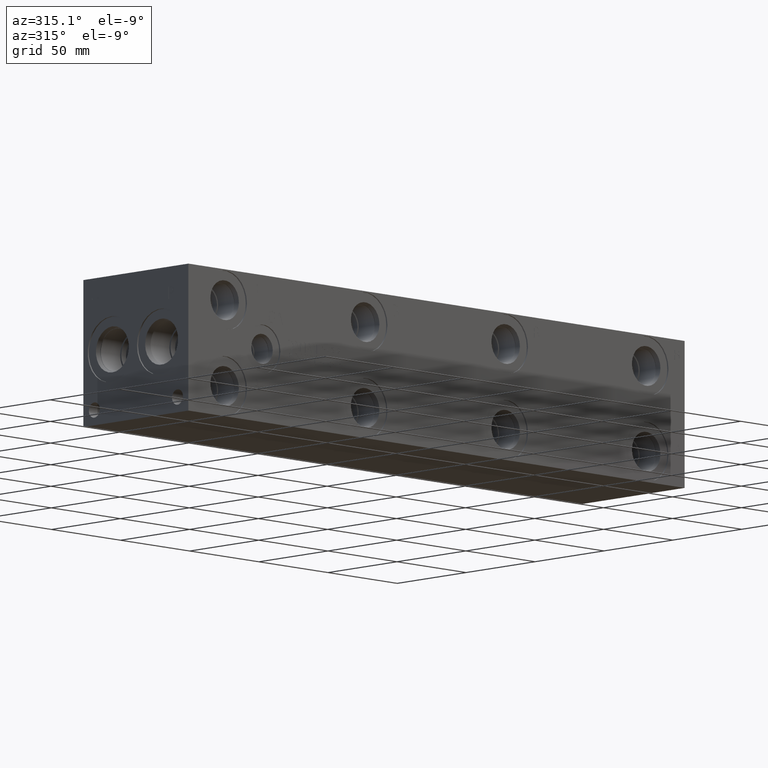
[diagram: clean part render]
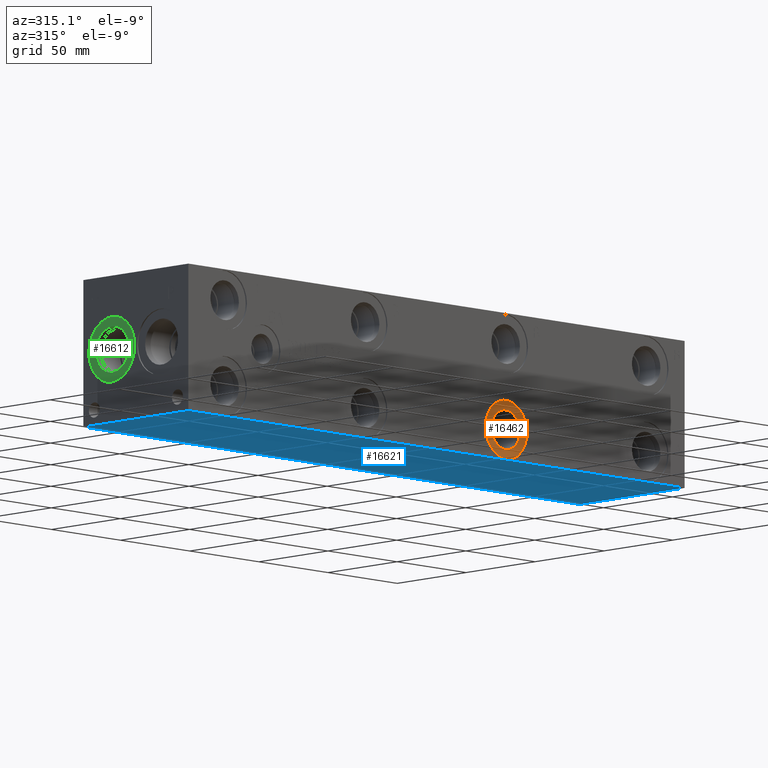
[diagram: same view with three faces highlighted in distinct colors, each labeled with its STEP entity id]
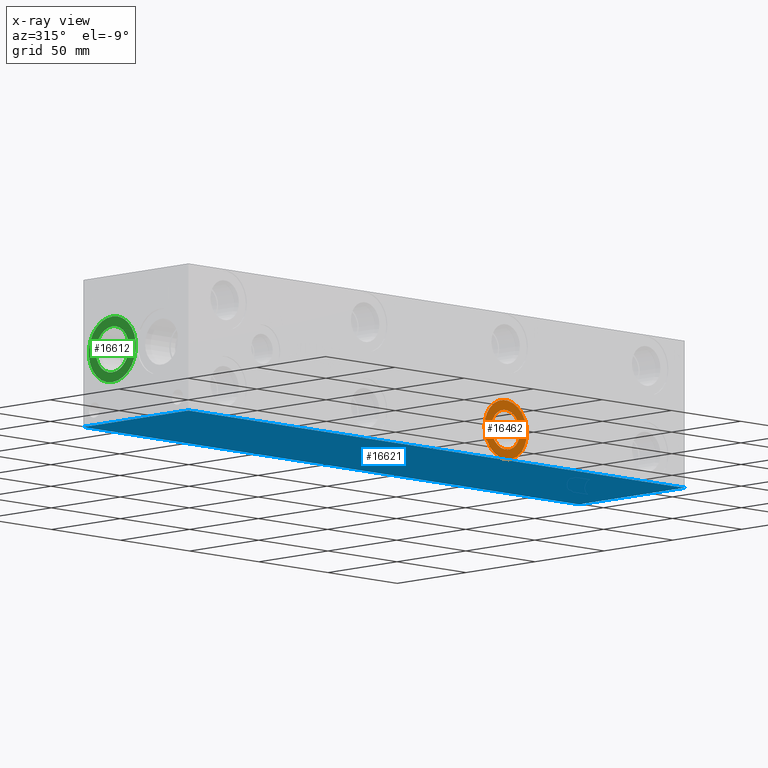
[diagram: x-ray of the same camera — body ghosted, the three highlighted faces saturated]
A machine part, auxiliary view with three faces highlighted in distinct colors.
The next image is the same camera in x-ray (body ghosted, the three faces saturated) — at least one of them is partly hidden behind the body in this view.
Their STEP definitions:

[orange] entity #16462 — the highlighted planar face has unit normal (0, 1, 0).
#514=CIRCLE('',#17426,15.3162);
#515=CIRCLE('',#17427,15.3162);
#516=CIRCLE('',#17429,10.2997);
#517=CIRCLE('',#17430,10.2997);
#837=FACE_BOUND('',#3128,.T.);
#2164=FACE_OUTER_BOUND('',#3127,.T.);
#3127=EDGE_LOOP('',(#13911,#13912));
#3128=EDGE_LOOP('',(#13913,#13914));
#7589=VERTEX_POINT('',#28028);
#7590=VERTEX_POINT('',#28030);
#7591=VERTEX_POINT('',#28034);
#7592=VERTEX_POINT('',#28035);
#9783=EDGE_CURVE('',#7589,#7590,#514,.T.);
#9784=EDGE_CURVE('',#7590,#7589,#515,.T.);
#9785=EDGE_CURVE('',#7591,#7592,#516,.T.);
#9786=EDGE_CURVE('',#7592,#7591,#517,.T.);
#13911=ORIENTED_EDGE('',*,*,#9784,.F.);
#13912=ORIENTED_EDGE('',*,*,#9783,.F.);
#13913=ORIENTED_EDGE('',*,*,#9785,.T.);
#13914=ORIENTED_EDGE('',*,*,#9786,.T.);
#15164=PLANE('',#17428);
#16462=ADVANCED_FACE('',(#2164,#837),#15164,.F.);
#17426=AXIS2_PLACEMENT_3D('',#28031,#20707,#20708);
#17427=AXIS2_PLACEMENT_3D('',#28032,#20709,#20710);
#17428=AXIS2_PLACEMENT_3D('',#28033,#20711,#20712);
#17429=AXIS2_PLACEMENT_3D('',#28036,#20713,#20714);
#17430=AXIS2_PLACEMENT_3D('',#28037,#20715,#20716);
#20707=DIRECTION('center_axis',(0.,1.,0.));
#20708=DIRECTION('ref_axis',(1.,0.,0.));
#20709=DIRECTION('center_axis',(0.,1.,0.));
#20710=DIRECTION('ref_axis',(1.,0.,0.));
#20711=DIRECTION('center_axis',(0.,1.,0.));
#20712=DIRECTION('ref_axis',(0.,0.,1.));
#20713=DIRECTION('center_axis',(0.,1.,0.));
#20714=DIRECTION('ref_axis',(1.,0.,0.));
#20715=DIRECTION('center_axis',(0.,1.,0.));
#20716=DIRECTION('ref_axis',(1.,0.,0.));
#28028=CARTESIAN_POINT('',(214.8586,0.7874,15.875));
#28030=CARTESIAN_POINT('',(245.491,0.7874,15.875));
#28031=CARTESIAN_POINT('Origin',(230.1748,0.7874,15.875));
#28032=CARTESIAN_POINT('Origin',(230.1748,0.7874,15.875));
#28033=CARTESIAN_POINT('Origin',(240.4745,0.7874,15.875));
#28034=CARTESIAN_POINT('',(240.4745,0.7874,15.875));
#28035=CARTESIAN_POINT('',(219.8751,0.787399999999999,15.875));
#28036=CARTESIAN_POINT('Origin',(230.1748,0.7874,15.875));
#28037=CARTESIAN_POINT('Origin',(230.1748,0.7874,15.875));

[blue] entity #16621 — the highlighted planar face has unit normal (0, 0, 1).
#2323=FACE_OUTER_BOUND('',#3351,.T.);
#3351=EDGE_LOOP('',(#14744,#14745,#14746,#14747));
#3683=LINE('',#23833,#5123);
#4472=LINE('',#26950,#5912);
#4531=LINE('',#27222,#5971);
#4790=LINE('',#28782,#6230);
#5123=VECTOR('',#18330,10.);
#5912=VECTOR('',#19705,10.);
#5971=VECTOR('',#19818,10.);
#6230=VECTOR('',#21599,10.);
#6574=VERTEX_POINT('',#23831);
#6575=VERTEX_POINT('',#23832);
#7234=VERTEX_POINT('',#26949);
#7292=VERTEX_POINT('',#27221);
#8346=EDGE_CURVE('',#6574,#6575,#3683,.T.);
#9325=EDGE_CURVE('',#6575,#7234,#4472,.T.);
#9408=EDGE_CURVE('',#7292,#6574,#4531,.T.);
#10136=EDGE_CURVE('',#7234,#7292,#4790,.T.);
#14744=ORIENTED_EDGE('',*,*,#8346,.F.);
#14745=ORIENTED_EDGE('',*,*,#9408,.F.);
#14746=ORIENTED_EDGE('',*,*,#10136,.F.);
#14747=ORIENTED_EDGE('',*,*,#9325,.F.);
#15197=PLANE('',#17812);
#16621=ADVANCED_FACE('',(#2323),#15197,.F.);
#17812=AXIS2_PLACEMENT_3D('',#28787,#21607,#21608);
#18330=DIRECTION('',(1.,0.,0.));
#19705=DIRECTION('',(0.,1.,0.));
#19818=DIRECTION('',(0.,-1.,0.));
#21599=DIRECTION('',(-1.,0.,0.));
#21607=DIRECTION('center_axis',(0.,0.,1.));
#21608=DIRECTION('ref_axis',(1.,0.,0.));
#23831=CARTESIAN_POINT('',(0.,0.,0.));
#23832=CARTESIAN_POINT('',(358.775,0.,0.));
#23833=CARTESIAN_POINT('',(0.,0.,0.));
#26949=CARTESIAN_POINT('',(358.775,76.2,0.));
#26950=CARTESIAN_POINT('',(358.775,0.,0.));
#27221=CARTESIAN_POINT('',(0.,76.2,0.));
#27222=CARTESIAN_POINT('',(0.,76.2,0.));
#28782=CARTESIAN_POINT('',(358.775,76.2,0.));
#28787=CARTESIAN_POINT('Origin',(179.3875,38.1,0.));

[green] entity #16612 — the highlighted planar face has unit normal (1, 0, 0).
#733=CIRCLE('',#17795,17.0688);
#734=CIRCLE('',#17796,17.0688);
#735=CIRCLE('',#17798,11.9507);
#736=CIRCLE('',#17799,11.9507);
#864=FACE_BOUND('',#3305,.T.);
#2314=FACE_OUTER_BOUND('',#3304,.T.);
#3304=EDGE_LOOP('',(#14623,#14624));
#3305=EDGE_LOOP('',(#14625,#14626));
#7825=VERTEX_POINT('',#28756);
#7826=VERTEX_POINT('',#28758);
#7827=VERTEX_POINT('',#28762);
#7828=VERTEX_POINT('',#28763);
#10125=EDGE_CURVE('',#7825,#7826,#733,.T.);
#10126=EDGE_CURVE('',#7826,#7825,#734,.T.);
#10127=EDGE_CURVE('',#7827,#7828,#735,.T.);
#10128=EDGE_CURVE('',#7828,#7827,#736,.T.);
#14623=ORIENTED_EDGE('',*,*,#10126,.F.);
#14624=ORIENTED_EDGE('',*,*,#10125,.F.);
#14625=ORIENTED_EDGE('',*,*,#10127,.T.);
#14626=ORIENTED_EDGE('',*,*,#10128,.T.);
#15191=PLANE('',#17797);
#16612=ADVANCED_FACE('',(#2314,#864),#15191,.F.);
#17795=AXIS2_PLACEMENT_3D('',#28759,#21568,#21569);
#17796=AXIS2_PLACEMENT_3D('',#28760,#21570,#21571);
#17797=AXIS2_PLACEMENT_3D('',#28761,#21572,#21573);
#17798=AXIS2_PLACEMENT_3D('',#28764,#21574,#21575);
#17799=AXIS2_PLACEMENT_3D('',#28765,#21576,#21577);
#21568=DIRECTION('center_axis',(1.,0.,0.));
#21569=DIRECTION('ref_axis',(0.,0.,-1.));
#21570=DIRECTION('center_axis',(1.,0.,0.));
#21571=DIRECTION('ref_axis',(0.,0.,-1.));
#21572=DIRECTION('center_axis',(1.,0.,0.));
#21573=DIRECTION('ref_axis',(0.,0.,-1.));
#21574=DIRECTION('center_axis',(1.,0.,0.));
#21575=DIRECTION('ref_axis',(0.,0.,-1.));
#21576=DIRECTION('center_axis',(1.,0.,0.));
#21577=DIRECTION('ref_axis',(0.,0.,-1.));
#28756=CARTESIAN_POINT('',(0.7874,55.9562,21.0312));
#28758=CARTESIAN_POINT('',(0.7874,55.9562,55.1688));
#28759=CARTESIAN_POINT('Origin',(0.7874,55.9562,38.1));
#28760=CARTESIAN_POINT('Origin',(0.7874,55.9562,38.1));
#28761=CARTESIAN_POINT('Origin',(0.7874,55.9562,50.0507));
#28762=CARTESIAN_POINT('',(0.7874,55.9562,50.0507));
#28763=CARTESIAN_POINT('',(0.787399999999999,55.9562,26.1493));
#28764=CARTESIAN_POINT('Origin',(0.7874,55.9562,38.1));
#28765=CARTESIAN_POINT('Origin',(0.7874,55.9562,38.1));